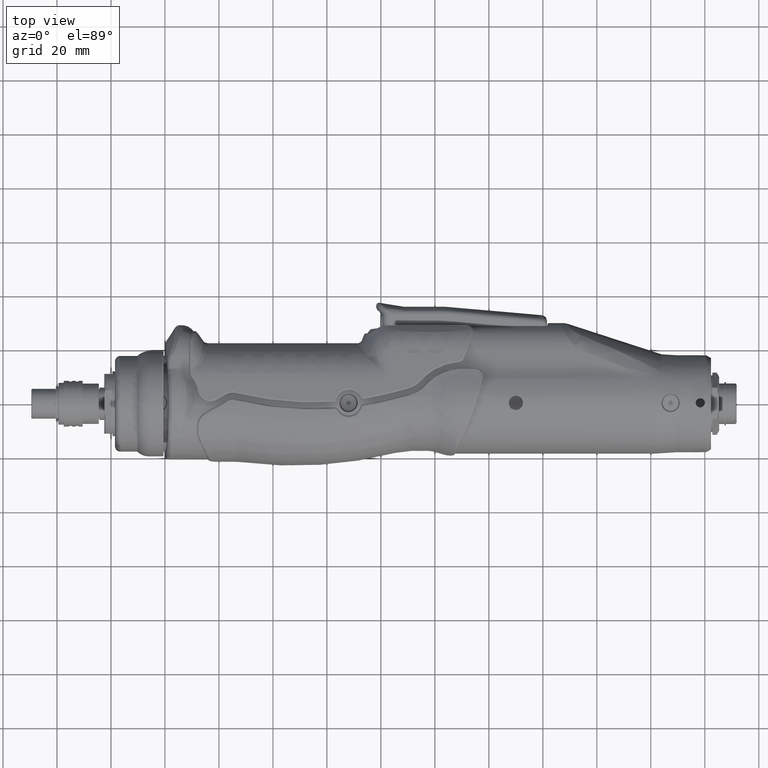
[diagram: clean part render]
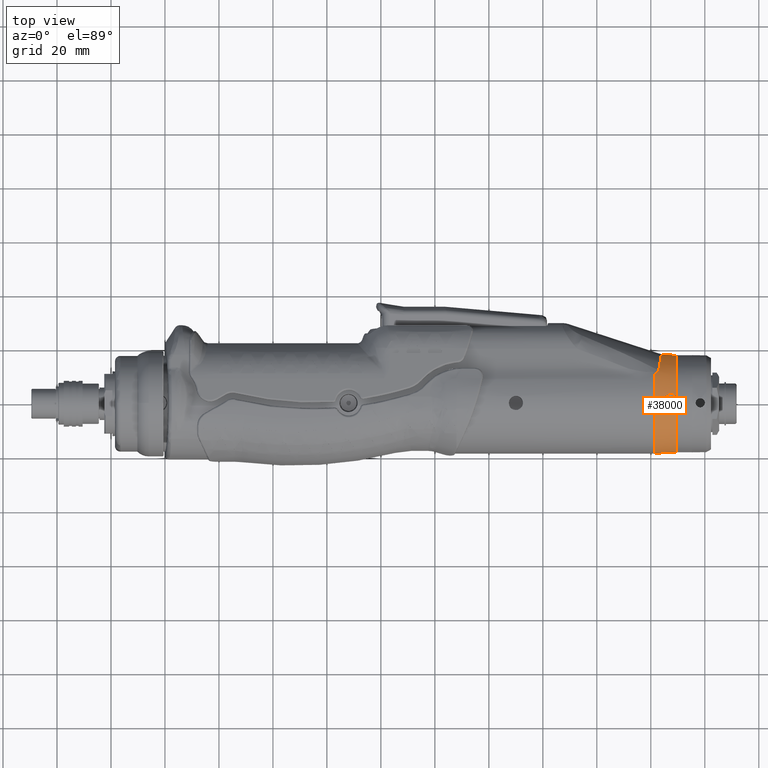
[diagram: same view with one face highlighted and labeled with its STEP entity id]
A machine part, top view. The second image highlights one B-rep face of the part: STEP entity #38000.
In plain terms, the highlighted conical surface has half-angle 3.576 deg.
Its self-contained STEP definition (entity closure, byte-faithful):
#272=CONICAL_SURFACE('',#41341,18.25,0.0624188099959568);
#361=(
BOUNDED_CURVE()
B_SPLINE_CURVE(2,(#91303,#91304,#91305),.UNSPECIFIED.,.F.,.F.)
B_SPLINE_CURVE_WITH_KNOTS((3,3),(0.00104003275952254,0.00156713286453282),
 .UNSPECIFIED.)
CURVE()
GEOMETRIC_REPRESENTATION_ITEM()
RATIONAL_B_SPLINE_CURVE((1.00000002100572,1.00000001582582,1.))
REPRESENTATION_ITEM('')
);
#364=(
BOUNDED_CURVE()
B_SPLINE_CURVE(2,(#91541,#91542,#91543),.UNSPECIFIED.,.F.,.F.)
B_SPLINE_CURVE_WITH_KNOTS((3,3),(0.,0.000527100104583283),.UNSPECIFIED.)
CURVE()
GEOMETRIC_REPRESENTATION_ITEM()
RATIONAL_B_SPLINE_CURVE((1.,1.00000001661713,1.00000002205602))
REPRESENTATION_ITEM('')
);
#2757=LINE('',#91196,#4671);
#2768=LINE('',#91311,#4682);
#4671=VECTOR('',#49381,10.);
#4682=VECTOR('',#49408,10.);
#8256=FACE_OUTER_BOUND('',#10656,.T.);
#10656=EDGE_LOOP('',(#33880,#33881,#33882,#33883,#33884,#33885,#33886,#33887,
#33888,#33889,#33890,#33891));
#12020=CIRCLE('',#41284,18.5);
#12031=CIRCLE('',#41312,18.);
#12032=CIRCLE('',#41313,18.);
#12043=CIRCLE('',#41342,18.5);
#14072=B_SPLINE_CURVE_WITH_KNOTS('',3,(#90450,#90451,#90452,#90453,#90454,
#90455,#90456,#90457,#90458,#90459,#90460,#90461),.UNSPECIFIED.,.F.,.F.,
(4,2,2,2,2,4),(2.19896874642759,2.24231306512733,2.60756277819123,2.97281249125512,
3.33806220431902,3.50126768915642),.UNSPECIFIED.);
#14079=B_SPLINE_CURVE_WITH_KNOTS('',3,(#90587,#90588,#90589,#90590,#90591,
#90592,#90593,#90594),.UNSPECIFIED.,.F.,.F.,(4,2,2,4),(0.,0.070485198721075,
0.135613668467093,0.167710475936236),.UNSPECIFIED.);
#14080=B_SPLINE_CURVE_WITH_KNOTS('',3,(#90617,#90618,#90619,#90620,#90621,
#90622,#90623,#90624,#90625,#90626),.UNSPECIFIED.,.F.,.F.,(4,2,2,2,4),(0.,
0.0764954484203415,0.113342081628961,0.154660541198044,0.155417067088364),
 .UNSPECIFIED.);
#14121=B_SPLINE_CURVE_WITH_KNOTS('',3,(#91426,#91427,#91428,#91429,#91430,
#91431,#91432,#91433,#91434,#91435,#91436,#91437,#91438,#91439,#91440,#91441,
#91442,#91443,#91444,#91445,#91446,#91447,#91448,#91449,#91450,#91451,#91452,
#91453,#91454,#91455,#91456,#91457,#91458,#91459,#91460,#91461,#91462,#91463,
#91464,#91465,#91466,#91467,#91468,#91469,#91470,#91471,#91472,#91473,#91474,
#91475,#91476,#91477,#91478,#91479,#91480,#91481,#91482,#91483,#91484,#91485,
#91486,#91487,#91488,#91489,#91490,#91491,#91492,#91493,#91494,#91495,#91496,
#91497,#91498,#91499,#91500,#91501,#91502,#91503,#91504,#91505,#91506,#91507,
#91508,#91509,#91510,#91511,#91512,#91513,#91514,#91515,#91516,#91517,#91518,
#91519,#91520,#91521,#91522,#91523,#91524,#91525,#91526,#91527,#91528,#91529,
#91530,#91531,#91532,#91533,#91534,#91535,#91536,#91537,#91538,#91539,#91540),
 .UNSPECIFIED.,.F.,.F.,(4,3,3,3,3,3,3,3,3,3,3,3,3,3,3,3,3,3,3,3,3,3,3,3,
3,3,3,3,3,3,3,3,3,3,3,3,3,3,4),(-2.93714259881074,-2.90419542704432,-2.84701859171506,
-2.82929945970893,-2.80882991058287,-2.79726607782938,-2.78508949055496,
-2.72645238940153,-2.72065095626975,-2.66274062435231,-2.60810284298462,
-2.55286099673936,-2.53552864005423,-2.5033895488919,-2.45553052641752,
-2.41849206900766,-2.39476842001551,-2.31494317475421,-2.28615941395365,
-2.24043959391718,-2.20354592016539,-2.17752902591951,-2.17749058824731,
-2.15426517555337,-2.11926637892136,-2.06889706631763,-2.04205001010027,
-1.96025847060155,-1.91709340774498,-1.85161983801337,-1.78038515596591,
-1.74298241812277,-1.6413357978534,-1.63434695489942,-1.54489623830316,
-1.52571153165444,-1.51254143968682,-1.42447030696326,-1.41784220686108),
 .UNSPECIFIED.);
#17541=VERTEX_POINT('',#90447);
#17542=VERTEX_POINT('',#90449);
#17548=VERTEX_POINT('',#90581);
#17549=VERTEX_POINT('',#90616);
#17550=VERTEX_POINT('',#90648);
#17582=VERTEX_POINT('',#91195);
#17586=VERTEX_POINT('',#91216);
#17587=VERTEX_POINT('',#91223);
#17588=VERTEX_POINT('',#91226);
#17589=VERTEX_POINT('',#91228);
#17597=VERTEX_POINT('',#91302);
#17599=VERTEX_POINT('',#91310);
#23022=EDGE_CURVE('',#17541,#17542,#14072,.T.);
#23032=EDGE_CURVE('',#17541,#17548,#14079,.T.);
#23034=EDGE_CURVE('',#17548,#17549,#14080,.T.);
#23037=EDGE_CURVE('',#17550,#17549,#12020,.T.);
#23093=EDGE_CURVE('',#17582,#17542,#2757,.T.);
#23098=EDGE_CURVE('',#17586,#17587,#12031,.T.);
#23101=EDGE_CURVE('',#17588,#17589,#12032,.T.);
#23113=EDGE_CURVE('',#17597,#17587,#361,.T.);
#23116=EDGE_CURVE('',#17599,#17597,#2768,.T.);
#23150=EDGE_CURVE('',#17589,#17586,#14121,.T.);
#23151=EDGE_CURVE('',#17588,#17582,#364,.T.);
#23152=EDGE_CURVE('',#17599,#17550,#12043,.T.);
#33880=ORIENTED_EDGE('',*,*,#23150,.F.);
#33881=ORIENTED_EDGE('',*,*,#23101,.F.);
#33882=ORIENTED_EDGE('',*,*,#23151,.T.);
#33883=ORIENTED_EDGE('',*,*,#23093,.T.);
#33884=ORIENTED_EDGE('',*,*,#23022,.F.);
#33885=ORIENTED_EDGE('',*,*,#23032,.T.);
#33886=ORIENTED_EDGE('',*,*,#23034,.T.);
#33887=ORIENTED_EDGE('',*,*,#23037,.F.);
#33888=ORIENTED_EDGE('',*,*,#23152,.F.);
#33889=ORIENTED_EDGE('',*,*,#23116,.T.);
#33890=ORIENTED_EDGE('',*,*,#23113,.T.);
#33891=ORIENTED_EDGE('',*,*,#23098,.F.);
#38000=ADVANCED_FACE('',(#8256),#272,.T.);
#41284=AXIS2_PLACEMENT_3D('',#90650,#49315,#49316);
#41312=AXIS2_PLACEMENT_3D('',#91224,#49385,#49386);
#41313=AXIS2_PLACEMENT_3D('',#91229,#49389,#49390);
#41341=AXIS2_PLACEMENT_3D('',#91425,#49469,#49470);
#41342=AXIS2_PLACEMENT_3D('',#91544,#49471,#49472);
#49315=DIRECTION('center_axis',(-1.,0.,0.));
#49316=DIRECTION('ref_axis',(0.,-1.,0.));
#49381=DIRECTION('',(-0.998052578482889,0.0619880258423978,0.00696672346370573));
#49385=DIRECTION('center_axis',(1.,0.,0.));
#49386=DIRECTION('ref_axis',(0.,0.,-1.));
#49389=DIRECTION('center_axis',(1.,0.,0.));
#49390=DIRECTION('ref_axis',(0.,0.,-1.));
#49408=DIRECTION('',(0.998052578482889,0.0619880258423975,-0.00696672346370817));
#49469=DIRECTION('center_axis',(-1.,0.,0.));
#49470=DIRECTION('ref_axis',(0.,-1.,0.));
#49471=DIRECTION('center_axis',(-1.,0.,0.));
#49472=DIRECTION('ref_axis',(0.,-1.,0.));
#90447=CARTESIAN_POINT('',(182.91875585956,12.1528862014161,13.8139139963033));
#90449=CARTESIAN_POINT('',(183.919032194364,18.2215921345859,2.04789218171269));
#90450=CARTESIAN_POINT('Ctrl Pts',(182.918755859549,12.1528862009708,13.813913995803));
#90451=CARTESIAN_POINT('Ctrl Pts',(182.937315779265,12.2623812527836,13.7160399644067));
#90452=CARTESIAN_POINT('Ctrl Pts',(182.95543029486,12.369527576382,13.617924650497));
#90453=CARTESIAN_POINT('Ctrl Pts',(183.121841489052,13.3559440331426,12.6936521273259));
#90454=CARTESIAN_POINT('Ctrl Pts',(183.259322703527,14.1861254547642,11.7513484066357));
#90455=CARTESIAN_POINT('Ctrl Pts',(183.500825393243,15.652737208523,9.68388415163517));
#90456=CARTESIAN_POINT('Ctrl Pts',(183.604788299561,16.2892741002512,8.55879236911776));
#90457=CARTESIAN_POINT('Ctrl Pts',(183.771720551616,17.3136302826363,6.20069897832864));
#90458=CARTESIAN_POINT('Ctrl Pts',(183.834813544759,17.7023488936184,4.96562348534161));
#90459=CARTESIAN_POINT('Ctrl Pts',(183.894764618926,18.0718888055319,3.16316883634766));
#90460=CARTESIAN_POINT('Ctrl Pts',(183.908996734186,18.1596787088147,2.60439707696109));
#90461=CARTESIAN_POINT('Ctrl Pts',(183.919032194363,18.2215921345804,2.04789218171238));
#90581=CARTESIAN_POINT('',(182.021516151073,11.1655795753024,14.6939906147228));
#90587=CARTESIAN_POINT('Ctrl Pts',(182.9187558592,12.1528861989111,13.813913997644));
#90588=CARTESIAN_POINT('Ctrl Pts',(182.889297929984,11.9790978671133,13.9692576808149));
#90589=CARTESIAN_POINT('Ctrl Pts',(182.823256885392,11.8108755714321,14.1167143167469));
#90590=CARTESIAN_POINT('Ctrl Pts',(182.600931075414,11.5149248527029,14.3767334123265));
#90591=CARTESIAN_POINT('Ctrl Pts',(182.459549233944,11.3953419195164,14.4823321102557));
#90592=CARTESIAN_POINT('Ctrl Pts',(182.204792163703,11.2469484138053,14.6175025531177));
#90593=CARTESIAN_POINT('Ctrl Pts',(182.115056190059,11.2037182249845,14.6576674553685));
#90594=CARTESIAN_POINT('Ctrl Pts',(182.021516151073,11.1655795753025,14.6939906147228));
#90616=CARTESIAN_POINT('',(181.3,10.4257254034709,15.282481794899));
#90617=CARTESIAN_POINT('Ctrl Pts',(182.021516151073,11.1655795753024,14.6939906147228));
#90618=CARTESIAN_POINT('Ctrl Pts',(181.799330233571,11.0749887335222,14.7802691172251));
#90619=CARTESIAN_POINT('Ctrl Pts',(181.626181467195,10.9644342520665,14.8761922336427));
#90620=CARTESIAN_POINT('Ctrl Pts',(181.446614875441,10.7859151112255,15.0193406211422));
#90621=CARTESIAN_POINT('Ctrl Pts',(181.396248225269,10.7215614109006,15.0692780833425));
#90622=CARTESIAN_POINT('Ctrl Pts',(181.318938145116,10.5735631934647,15.1794424562801));
#90623=CARTESIAN_POINT('Ctrl Pts',(181.300663129945,10.4981120426417,15.2330238755619));
#90624=CARTESIAN_POINT('Ctrl Pts',(181.300005930704,10.4282391141848,15.2807662627871));
#90625=CARTESIAN_POINT('Ctrl Pts',(181.3,10.4269824140801,15.2816242609189));
#90626=CARTESIAN_POINT('Ctrl Pts',(181.3,10.4257254034709,15.282481794899));
#90648=CARTESIAN_POINT('',(181.299999999252,9.95077601828486,15.5958987119668));
#90650=CARTESIAN_POINT('Origin',(181.3,0.,0.));
#91195=CARTESIAN_POINT('',(189.296491037772,17.8876036605099,2.01035581368608));
#91196=CARTESIAN_POINT('',(185.3,18.1358216352633,2.03825258834995));
#91216=CARTESIAN_POINT('',(189.299999995053,-2.8368278162302,17.7750501536093));
#91223=CARTESIAN_POINT('',(189.3,-17.8878225448907,2.00644077971384));
#91224=CARTESIAN_POINT('Origin',(189.3,0.,0.));
#91226=CARTESIAN_POINT('',(189.3,17.8878225448908,2.00644077971371));
#91228=CARTESIAN_POINT('',(189.3,2.83682780919608,17.7750501541057));
#91229=CARTESIAN_POINT('Origin',(189.3,0.,0.));
#91302=CARTESIAN_POINT('',(189.296491037772,-17.8876036605099,2.01035581368608));
#91303=CARTESIAN_POINT('Ctrl Pts',(189.296491037772,-17.8876036605099,2.01035581368608));
#91304=CARTESIAN_POINT('Ctrl Pts',(189.298248935626,-17.8877131033673,2.00839828476963));
#91305=CARTESIAN_POINT('Ctrl Pts',(189.3,-17.8878225448907,2.00644077971387));
#91310=CARTESIAN_POINT('',(181.3,-18.3842575480751,2.06617385668418));
#91311=CARTESIAN_POINT('',(185.3,-18.1358216352632,2.03825258835067));
#91425=CARTESIAN_POINT('Origin',(185.3,0.,0.));
#91426=CARTESIAN_POINT('Ctrl Pts',(189.299999943403,2.83682773321535,17.7750502189939));
#91427=CARTESIAN_POINT('Ctrl Pts',(189.210230834576,2.90064079123261,17.7705488900594));
#91428=CARTESIAN_POINT('Ctrl Pts',(189.117421199777,2.96010699750862,17.766621036166));
#91429=CARTESIAN_POINT('Ctrl Pts',(189.022026054503,3.01501343069688,17.7633806820722));
#91430=CARTESIAN_POINT('Ctrl Pts',(188.856476411844,3.11029857720897,17.7577573407503));
#91431=CARTESIAN_POINT('Ctrl Pts',(188.683132924632,3.19185316002539,17.7542046966284));
#91432=CARTESIAN_POINT('Ctrl Pts',(188.504358343507,3.25862523853804,17.7533117130622));
#91433=CARTESIAN_POINT('Ctrl Pts',(188.448956004709,3.27931794156499,17.753034976975));
#91434=CARTESIAN_POINT('Ctrl Pts',(188.393032205604,3.29859130290791,17.7530136087372));
#91435=CARTESIAN_POINT('Ctrl Pts',(188.336657535146,3.31641498556929,17.7532649482985));
#91436=CARTESIAN_POINT('Ctrl Pts',(188.271532218286,3.3370053140187,17.7535553015447));
#91437=CARTESIAN_POINT('Ctrl Pts',(188.205805204018,3.35566097116064,17.7542095971058));
#91438=CARTESIAN_POINT('Ctrl Pts',(188.139606911782,3.37236010064636,17.7552384528701));
#91439=CARTESIAN_POINT('Ctrl Pts',(188.102209606387,3.38179391569095,17.7558196828675));
#91440=CARTESIAN_POINT('Ctrl Pts',(188.064661895127,3.39060333158923,17.7565204484414));
#91441=CARTESIAN_POINT('Ctrl Pts',(188.026987279782,3.39878452992064,17.7573426383663));
#91442=CARTESIAN_POINT('Ctrl Pts',(187.987316328847,3.40739924077088,17.7582083952128));
#91443=CARTESIAN_POINT('Ctrl Pts',(187.94749578669,3.41531935266801,17.7592089731561));
#91444=CARTESIAN_POINT('Ctrl Pts',(187.907550257789,3.42253995872733,17.7603468316494));
#91445=CARTESIAN_POINT('Ctrl Pts',(187.715190118942,3.4573112290634,17.7658262588539));
#91446=CARTESIAN_POINT('Ctrl Pts',(187.519949377672,3.47585316208993,17.7744894683002));
#91447=CARTESIAN_POINT('Ctrl Pts',(187.324873745976,3.4775845420324,17.7865997565533));
#91448=CARTESIAN_POINT('Ctrl Pts',(187.305573367706,3.47775584117176,17.7877979233474));
#91449=CARTESIAN_POINT('Ctrl Pts',(187.286274617281,3.47776262630537,17.7890298250843));
#91450=CARTESIAN_POINT('Ctrl Pts',(187.266980450426,3.47760436098007,17.7902957116604));
#91451=CARTESIAN_POINT('Ctrl Pts',(187.074384658786,3.47602454487066,17.8029318845032));
#91452=CARTESIAN_POINT('Ctrl Pts',(186.882246019579,3.45799482976605,17.8189551095436));
#91453=CARTESIAN_POINT('Ctrl Pts',(186.693051893794,3.42436901801337,17.8375964475277));
#91454=CARTESIAN_POINT('Ctrl Pts',(186.514549251201,3.39264342276945,17.8551843513689));
#91455=CARTESIAN_POINT('Ctrl Pts',(186.338708556693,3.34704882508339,17.8750977111086));
#91456=CARTESIAN_POINT('Ctrl Pts',(186.167506336392,3.28823438372813,17.8967107884548));
#91457=CARTESIAN_POINT('Ctrl Pts',(185.994411337035,3.22876970114002,17.918562815857));
#91458=CARTESIAN_POINT('Ctrl Pts',(185.826057506639,3.15578995923511,17.9421529796907));
#91459=CARTESIAN_POINT('Ctrl Pts',(185.664535277019,3.06994476218167,17.9668298373575));
#91460=CARTESIAN_POINT('Ctrl Pts',(185.613857012503,3.04301047818924,17.9745723030428));
#91461=CARTESIAN_POINT('Ctrl Pts',(185.563851633747,3.01480961620928,17.9824216737232));
#91462=CARTESIAN_POINT('Ctrl Pts',(185.514584730633,2.98536209876653,17.9903575979598));
#91463=CARTESIAN_POINT('Ctrl Pts',(185.423229958789,2.93075807319806,18.005073045901));
#91464=CARTESIAN_POINT('Ctrl Pts',(185.334355409579,2.87200506320127,18.0200678671978));
#91465=CARTESIAN_POINT('Ctrl Pts',(185.24838027684,2.80921354019001,18.0352191561452));
#91466=CARTESIAN_POINT('Ctrl Pts',(185.120352829233,2.71570931208918,18.0577812713771));
#91467=CARTESIAN_POINT('Ctrl Pts',(184.99875371586,2.61324753959027,18.0806908737077));
#91468=CARTESIAN_POINT('Ctrl Pts',(184.884596969792,2.50282851915033,18.103234717613));
#91469=CARTESIAN_POINT('Ctrl Pts',(184.79625020551,2.41737440884138,18.1206815679491));
#91470=CARTESIAN_POINT('Ctrl Pts',(184.71236192581,2.32715514499656,18.1379090064591));
#91471=CARTESIAN_POINT('Ctrl Pts',(184.633411579234,2.23265305604733,18.1545818572538));
#91472=CARTESIAN_POINT('Ctrl Pts',(184.582842780182,2.17212314891736,18.1652610509248));
#91473=CARTESIAN_POINT('Ctrl Pts',(184.534299784627,2.10982023986199,18.1757146189554));
#91474=CARTESIAN_POINT('Ctrl Pts',(184.48789956958,2.04587590537623,18.1858539327577));
#91475=CARTESIAN_POINT('Ctrl Pts',(184.331772299804,1.83071624823043,18.2199706578584));
#91476=CARTESIAN_POINT('Ctrl Pts',(184.199901636438,1.59697434567328,18.2505299926302));
#91477=CARTESIAN_POINT('Ctrl Pts',(184.096259397022,1.35044356150785,18.2752202356774));
#91478=CARTESIAN_POINT('Ctrl Pts',(184.058887592922,1.26154833671823,18.2841231591529));
#91479=CARTESIAN_POINT('Ctrl Pts',(184.025138541231,1.17103287117593,18.2922631072292));
#91480=CARTESIAN_POINT('Ctrl Pts',(183.995212062432,1.0791620669547,18.2995328600793));
#91481=CARTESIAN_POINT('Ctrl Pts',(183.947677161258,0.933235456992073,18.311080058318));
#91482=CARTESIAN_POINT('Ctrl Pts',(183.909786980701,0.783887591765917,18.3204317294384));
#91483=CARTESIAN_POINT('Ctrl Pts',(183.881862786815,0.632582366513232,18.3273906401901));
#91484=CARTESIAN_POINT('Ctrl Pts',(183.859329318876,0.510486399972667,18.3330061431107));
#91485=CARTESIAN_POINT('Ctrl Pts',(183.84331275829,0.387088668432269,18.3370627172889));
#91486=CARTESIAN_POINT('Ctrl Pts',(183.83393139047,0.263143993874678,18.3394586630862));
#91487=CARTESIAN_POINT('Ctrl Pts',(183.82731578325,0.175739971385632,18.3411482500015));
#91488=CARTESIAN_POINT('Ctrl Pts',(183.823997755893,0.0880645944979389,
18.3420121056944));
#91489=CARTESIAN_POINT('Ctrl Pts',(183.823988126768,0.000388596006880218,
18.342016410674));
#91490=CARTESIAN_POINT('Ctrl Pts',(183.823988112542,0.000259062433114533,
18.3420164170342));
#91491=CARTESIAN_POINT('Ctrl Pts',(183.823988105537,0.000129528855822684,
18.3420164215182));
#91492=CARTESIAN_POINT('Ctrl Pts',(183.823988105753,-4.72414586597849E-9,
18.3420164241263));
#91493=CARTESIAN_POINT('Ctrl Pts',(183.823988236314,-0.0782688144667531,
18.3420179999773));
#91494=CARTESIAN_POINT('Ctrl Pts',(183.826624567972,-0.156537527181889,
18.3413346141725));
#91495=CARTESIAN_POINT('Ctrl Pts',(183.831890347695,-0.234613386974964,
18.3399892582683));
#91496=CARTESIAN_POINT('Ctrl Pts',(183.839825446892,-0.352267319534759,
18.3379619169973));
#91497=CARTESIAN_POINT('Ctrl Pts',(183.853735238745,-0.46948228796705,18.3344311584525));
#91498=CARTESIAN_POINT('Ctrl Pts',(183.873527246999,-0.585611428014136,
18.3294810520546));
#91499=CARTESIAN_POINT('Ctrl Pts',(183.902011364934,-0.75274131590535,18.3223569940706));
#91500=CARTESIAN_POINT('Ctrl Pts',(183.94265145392,-0.917650422174515,18.3122941287741));
#91501=CARTESIAN_POINT('Ctrl Pts',(183.994995215021,-1.07842429346047,18.2995528212086));
#91502=CARTESIAN_POINT('Ctrl Pts',(184.02289466062,-1.16411744545269,18.2927616504974));
#91503=CARTESIAN_POINT('Ctrl Pts',(184.054118949208,-1.24863670287872,18.285209543861));
#91504=CARTESIAN_POINT('Ctrl Pts',(184.08851199971,-1.3317553032022,18.2769895480069));
#91505=CARTESIAN_POINT('Ctrl Pts',(184.193292968088,-1.5849822576361,18.2519467235667));
#91506=CARTESIAN_POINT('Ctrl Pts',(184.327691801284,-1.82508694007679,18.2207004858771));
#91507=CARTESIAN_POINT('Ctrl Pts',(184.487647640454,-2.04555826038005,18.18587208691));
#91508=CARTESIAN_POINT('Ctrl Pts',(184.572063509067,-2.16191086185065,18.1674915790992));
#91509=CARTESIAN_POINT('Ctrl Pts',(184.663598335463,-2.2727953908206,18.1481131412177));
#91510=CARTESIAN_POINT('Ctrl Pts',(184.761493978855,-2.37752280577976,18.1282039820008));
#91511=CARTESIAN_POINT('Ctrl Pts',(184.909983910524,-2.53637529555658,18.0980053992112));
#91512=CARTESIAN_POINT('Ctrl Pts',(185.073096450428,-2.68104734302082,18.0665882785077));
#91513=CARTESIAN_POINT('Ctrl Pts',(185.248166782728,-2.80910284505479,18.0355891001977));
#91514=CARTESIAN_POINT('Ctrl Pts',(185.438641802015,-2.94842613243948,18.0018622601964));
#91515=CARTESIAN_POINT('Ctrl Pts',(185.643271443453,-3.06807980217727,17.9686302393452));
#91516=CARTESIAN_POINT('Ctrl Pts',(185.857940700842,-3.16589158029917,17.9377384116324));
#91517=CARTESIAN_POINT('Ctrl Pts',(185.970655711652,-3.21724898360207,17.9215182376915));
#91518=CARTESIAN_POINT('Ctrl Pts',(186.08614056753,-3.26258589515415,17.905942909013));
#91519=CARTESIAN_POINT('Ctrl Pts',(186.203801956273,-3.30158834987779,17.8912792832605));
#91520=CARTESIAN_POINT('Ctrl Pts',(186.523561503077,-3.40758240094147,17.8514290454279));
#91521=CARTESIAN_POINT('Ctrl Pts',(186.859396235234,-3.46679511224425,17.8183117908252));
#91522=CARTESIAN_POINT('Ctrl Pts',(187.19727994213,-3.476225600412,17.7949419379347));
#91523=CARTESIAN_POINT('Ctrl Pts',(187.220511567126,-3.4768740056478,17.7933351139078));
#91524=CARTESIAN_POINT('Ctrl Pts',(187.243752596635,-3.47728699982908,17.791774401747));
#91525=CARTESIAN_POINT('Ctrl Pts',(187.266998478239,-3.4774636336606,17.7902607757502));
#91526=CARTESIAN_POINT('Ctrl Pts',(187.564524231934,-3.47972438310207,17.7708877649434));
#91527=CARTESIAN_POINT('Ctrl Pts',(187.862842492728,-3.44326901324728,17.7592276247702));
#91528=CARTESIAN_POINT('Ctrl Pts',(188.151867648617,-3.36937137291399,17.7548330396852));
#91529=CARTESIAN_POINT('Ctrl Pts',(188.213855557052,-3.35352237129866,17.7538905226333));
#91530=CARTESIAN_POINT('Ctrl Pts',(188.275416083029,-3.33595091721931,17.7532822404215));
#91531=CARTESIAN_POINT('Ctrl Pts',(188.336449830561,-3.31666928323979,17.7530038376337));
#91532=CARTESIAN_POINT('Ctrl Pts',(188.378348832868,-3.30343265171625,17.7528127171549));
#91533=CARTESIAN_POINT('Ctrl Pts',(188.419999582078,-3.2893900658734,17.7527770586464));
#91534=CARTESIAN_POINT('Ctrl Pts',(188.461373379852,-3.27455544152491,17.752888550767));
#91535=CARTESIAN_POINT('Ctrl Pts',(188.738048534743,-3.17535323601927,17.7536341216689));
#91536=CARTESIAN_POINT('Ctrl Pts',(189.002272320598,-3.04071623008564,17.7609673314762));
#91537=CARTESIAN_POINT('Ctrl Pts',(189.245456182982,-2.87481396513167,17.7724002840803));
#91538=CARTESIAN_POINT('Ctrl Pts',(189.263757832266,-2.86232841186026,17.7732607107829));
#91539=CARTESIAN_POINT('Ctrl Pts',(189.281940309822,-2.84966575343795,17.7741443614438));
#91540=CARTESIAN_POINT('Ctrl Pts',(189.299999951313,-2.83682775569134,17.7750501772252));
#91541=CARTESIAN_POINT('Ctrl Pts',(189.3,17.8878225448908,2.0064407797137));
#91542=CARTESIAN_POINT('Ctrl Pts',(189.298248935624,17.8877131033672,2.00839828477195));
#91543=CARTESIAN_POINT('Ctrl Pts',(189.296491037772,17.8876036605099,2.01035581368608));
#91544=CARTESIAN_POINT('Origin',(181.3,0.,0.));